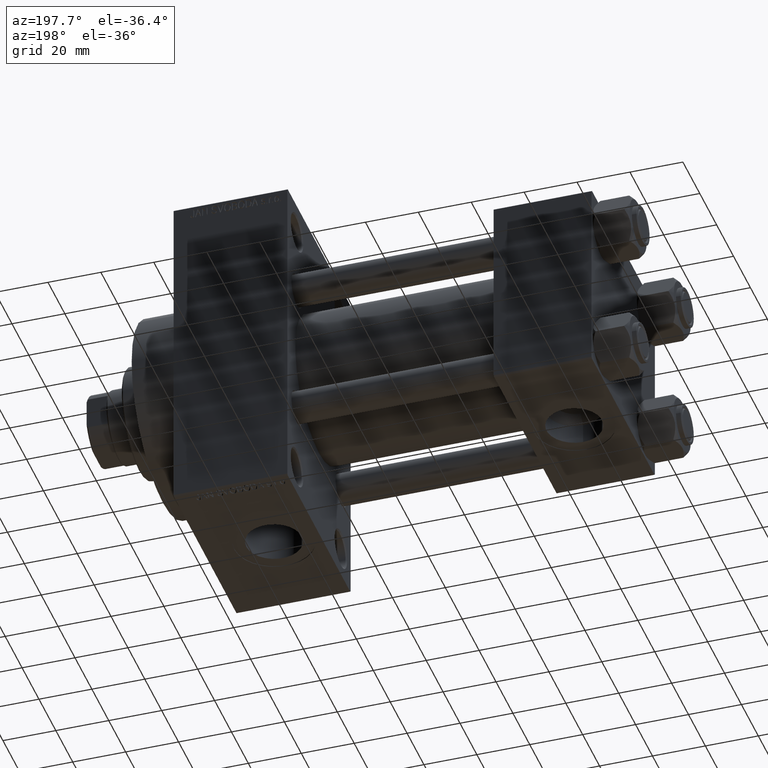
[diagram: clean part render]
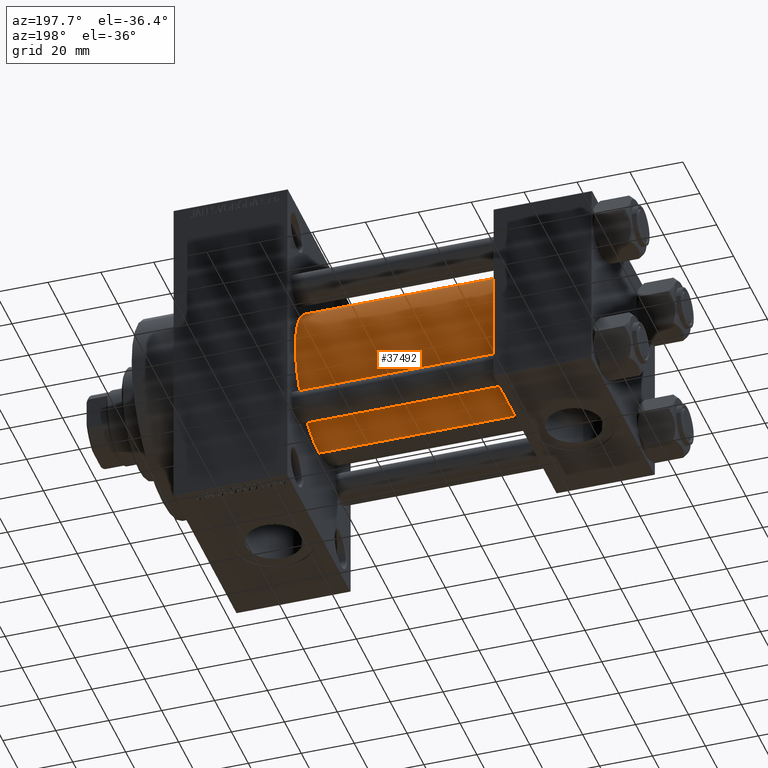
[diagram: same view with one face highlighted and labeled with its STEP entity id]
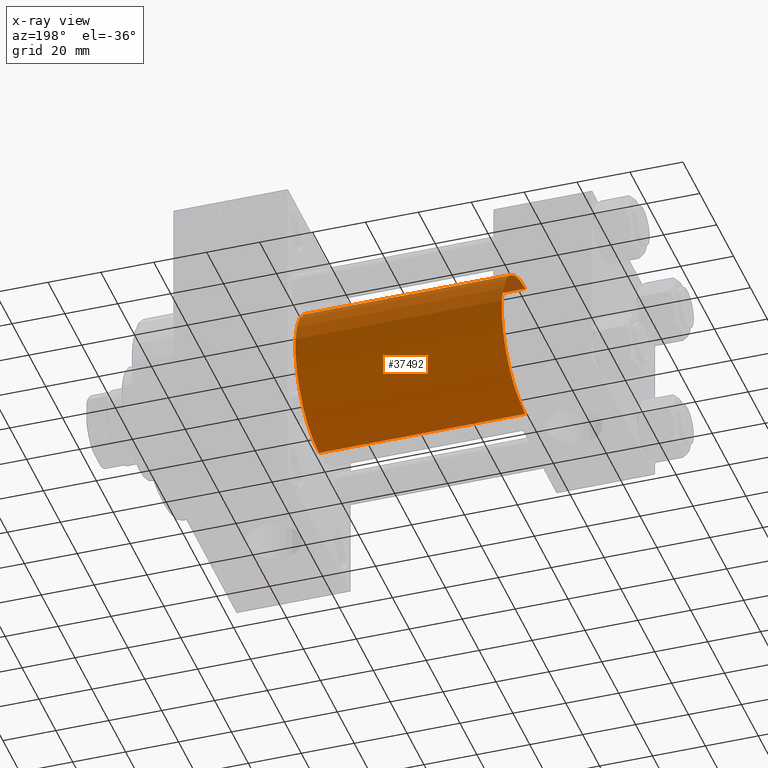
[diagram: x-ray of the same camera — body ghosted, the highlighted face saturated]
A machine part, auxiliary view. The second image highlights one B-rep face of the part: STEP entity #37492.
The next image is the same camera in x-ray: the body ghosted, the highlighted face saturated — about 1% of this face is hidden behind the body in this view.
In plain terms, the highlighted cylindrical surface (partial cylindrical patch) has radius 28 mm, axis along (-1, -0, -0).
Its self-contained STEP definition (entity closure, byte-faithful):
#1120 = AXIS2_PLACEMENT_3D ( 'NONE', #3884, #34432, #15412 ) ;
#2357 = AXIS2_PLACEMENT_3D ( 'NONE', #19740, #49527, #45529 ) ;
#3107 = CYLINDRICAL_SURFACE ( 'NONE', #16498, 28.00000000000000000 ) ;
#3884 = CARTESIAN_POINT ( 'NONE',  ( 37.00000000000000711, -2.602085213965210642E-15, 0.000000000000000000 ) ) ;
#4528 = EDGE_CURVE ( 'NONE', #6182, #48402, #44731, .T. ) ;
#4978 = VECTOR ( 'NONE', #44099, 1000.000000000000000 ) ;
#6182 = VERTEX_POINT ( 'NONE', #9608 ) ;
#6880 = DIRECTION ( 'NONE',  ( 0.000000000000000000, 0.000000000000000000, 1.000000000000000000 ) ) ;
#8150 = ORIENTED_EDGE ( 'NONE', *, *, #4528, .F. ) ;
#9608 = CARTESIAN_POINT ( 'NONE',  ( 114.9999999999999858, 8.269258236473784371E-16, -28.00000000000000000 ) ) ;
#11411 = EDGE_CURVE ( 'NONE', #6182, #40505, #36345, .T. ) ;
#15412 = DIRECTION ( 'NONE',  ( 0.000000000000000000, 0.000000000000000000, 1.000000000000000000 ) ) ;
#15628 = LINE ( 'NONE', #38658, #42582 ) ;
#15892 = CARTESIAN_POINT ( 'NONE',  ( 37.00000000000000711, 8.269258236473784371E-16, -28.00000000000000000 ) ) ;
#16498 = AXIS2_PLACEMENT_3D ( 'NONE', #45657, #41905, #6880 ) ;
#19740 = CARTESIAN_POINT ( 'NONE',  ( 114.9999999999999858, -2.602085213965210642E-15, 0.000000000000000000 ) ) ;
#20218 = CARTESIAN_POINT ( 'NONE',  ( 114.9999999999999858, -2.602085213965210642E-15, 28.00000000000000000 ) ) ;
#23573 = VERTEX_POINT ( 'NONE', #45319 ) ;
#29903 = EDGE_CURVE ( 'NONE', #48402, #23573, #15628, .T. ) ;
#32584 = CARTESIAN_POINT ( 'NONE',  ( 114.9999999999999858, 8.269258236473784371E-16, -28.00000000000000000 ) ) ;
#33052 = EDGE_CURVE ( 'NONE', #40505, #23573, #33110, .T. ) ;
#33110 = CIRCLE ( 'NONE', #1120, 28.00000000000000000 ) ;
#34432 = DIRECTION ( 'NONE',  ( 1.000000000000000000, -0.000000000000000000, 0.000000000000000000 ) ) ;
#36345 = LINE ( 'NONE', #32584, #4978 ) ;
#37492 = ADVANCED_FACE ( 'NONE', ( #41165 ), #3107, .T. ) ;
#38658 = CARTESIAN_POINT ( 'NONE',  ( 114.9999999999999858, -2.602085213965210642E-15, 28.00000000000000000 ) ) ;
#39401 = DIRECTION ( 'NONE',  ( -1.000000000000000000, -0.000000000000000000, -0.000000000000000000 ) ) ;
#39738 = ORIENTED_EDGE ( 'NONE', *, *, #11411, .T. ) ;
#39988 = ORIENTED_EDGE ( 'NONE', *, *, #33052, .T. ) ;
#40505 = VERTEX_POINT ( 'NONE', #15892 ) ;
#41165 = FACE_OUTER_BOUND ( 'NONE', #49035, .T. ) ;
#41905 = DIRECTION ( 'NONE',  ( -1.000000000000000000, -0.000000000000000000, -0.000000000000000000 ) ) ;
#42582 = VECTOR ( 'NONE', #39401, 1000.000000000000000 ) ;
#43368 = ORIENTED_EDGE ( 'NONE', *, *, #29903, .F. ) ;
#44099 = DIRECTION ( 'NONE',  ( -1.000000000000000000, -0.000000000000000000, -0.000000000000000000 ) ) ;
#44731 = CIRCLE ( 'NONE', #2357, 28.00000000000000000 ) ;
#45319 = CARTESIAN_POINT ( 'NONE',  ( 37.00000000000000711, -2.602085213965210642E-15, 28.00000000000000000 ) ) ;
#45529 = DIRECTION ( 'NONE',  ( 0.000000000000000000, 0.000000000000000000, -1.000000000000000000 ) ) ;
#45657 = CARTESIAN_POINT ( 'NONE',  ( 114.9999999999999858, -2.602085213965210642E-15, 0.000000000000000000 ) ) ;
#48402 = VERTEX_POINT ( 'NONE', #20218 ) ;
#49035 = EDGE_LOOP ( 'NONE', ( #8150, #39738, #39988, #43368 ) ) ;
#49527 = DIRECTION ( 'NONE',  ( 1.000000000000000000, 0.000000000000000000, 0.000000000000000000 ) ) ;